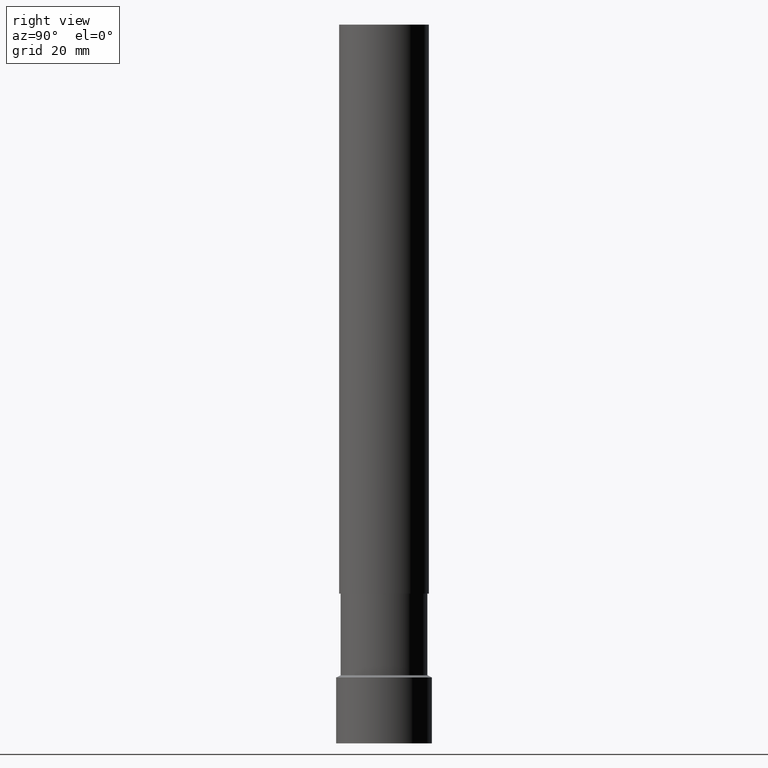
[diagram: clean part render]
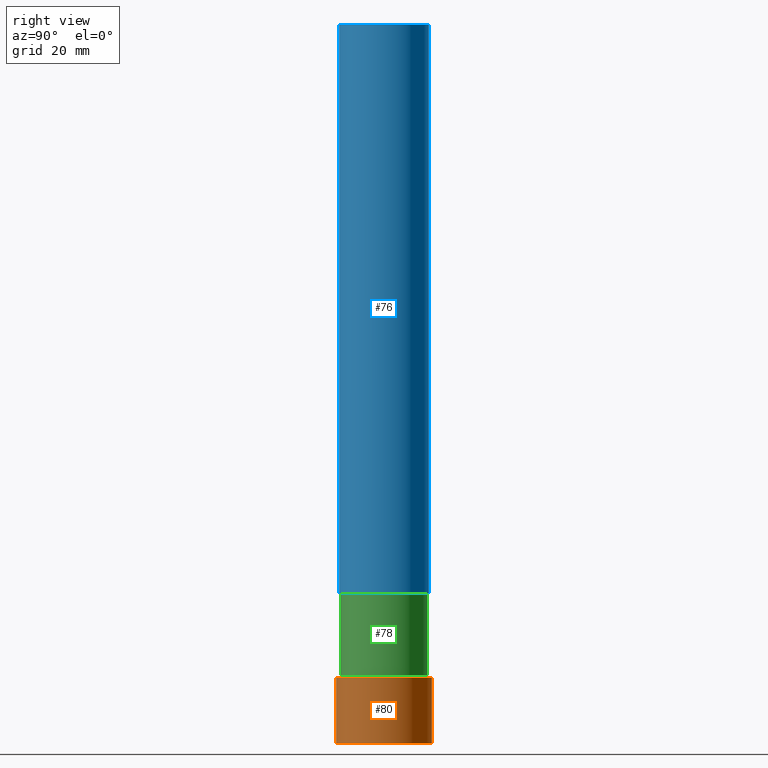
[diagram: same view with three faces highlighted in distinct colors, each labeled with its STEP entity id]
A machine part, right view with three faces highlighted in distinct colors.
Their STEP definitions:

[orange] entity #80 — the highlighted cylindrical surface (bore or boss wall) has radius 8 mm, axis along (-0, -0, 1).
#80=ADVANCED_FACE('',(#97,#98),#99,.T.);
#97=FACE_BOUND('',#116,.T.);
#98=FACE_BOUND('',#117,.T.);
#99=CYLINDRICAL_SURFACE('',#118,7.99999999999999);
#116=EDGE_LOOP('',(#145));
#117=EDGE_LOOP('',(#146));
#118=AXIS2_PLACEMENT_3D('',#147,#148,#149);
#145=ORIENTED_EDGE('',*,*,#159,.F.);
#146=ORIENTED_EDGE('',*,*,#158,.T.);
#147=CARTESIAN_POINT('',(-3.37062861257969E-016,-1.31483138278422E-015,5.50465426427677));
#148=DIRECTION('',(-6.12323399573677E-017,-2.38858122537686E-016,1.0));
#149=DIRECTION('',(-1.94529944915752E-032,1.0,2.38858122537686E-016));
#158=EDGE_CURVE('',#168,#168,#169,.T.);
#159=EDGE_CURVE('',#170,#170,#171,.T.);
#168=VERTEX_POINT('',#180);
#169=CIRCLE('',#181,8.0);
#170=VERTEX_POINT('',#182);
#171=CIRCLE('',#183,7.99999999999997);
#180=CARTESIAN_POINT('',(-6.74125722515938E-016,8.0,11.0093085285535));
#181=AXIS2_PLACEMENT_3D('',#196,#197,#198);
#182=CARTESIAN_POINT('',(0.0,7.99999999999997,0.0));
#183=AXIS2_PLACEMENT_3D('',#199,#200,#201);
#196=CARTESIAN_POINT('',(-6.74125722515938E-016,-2.62966276556843E-015,11.0093085285535));
#197=DIRECTION('',(6.12323399573677E-017,2.38858122537686E-016,-1.0));
#198=DIRECTION('',(-1.94529944915752E-032,1.0,2.38858122537686E-016));
#199=CARTESIAN_POINT('',(0.0,0.0,0.0));
#200=DIRECTION('',(6.12323399573676E-017,2.38858122537686E-016,-1.0));
#201=DIRECTION('',(-1.94529944915752E-032,1.0,2.38858122537686E-016));

[blue] entity #76 — the highlighted cylindrical surface (bore or boss wall) has radius 7.5 mm, axis along (-0, -0, 1).
#76=ADVANCED_FACE('',(#85,#86),#87,.T.);
#85=FACE_BOUND('',#104,.T.);
#86=FACE_BOUND('',#105,.T.);
#87=CYLINDRICAL_SURFACE('',#106,7.49999999999957);
#104=EDGE_LOOP('',(#125));
#105=EDGE_LOOP('',(#126));
#106=AXIS2_PLACEMENT_3D('',#127,#128,#129);
#125=ORIENTED_EDGE('',*,*,#155,.F.);
#126=ORIENTED_EDGE('',*,*,#154,.T.);
#127=CARTESIAN_POINT('',(-4.43934464690896E-015,-1.73172138839815E-014,72.4999999999968));
#128=DIRECTION('',(-6.12323399573677E-017,-2.38858122537686E-016,1.0));
#129=DIRECTION('',(-1.94529944915752E-032,1.0,2.38858122537686E-016));
#154=EDGE_CURVE('',#160,#160,#161,.T.);
#155=EDGE_CURVE('',#162,#162,#163,.T.);
#160=VERTEX_POINT('',#172);
#161=CIRCLE('',#173,7.49999999999911);
#162=VERTEX_POINT('',#174);
#163=CIRCLE('',#175,7.50000000000003);
#172=CARTESIAN_POINT('',(-7.3478807948841E-015,7.49999999999908,120.0));
#173=AXIS2_PLACEMENT_3D('',#184,#185,#186);
#174=CARTESIAN_POINT('',(-1.53080849893382E-015,7.50000000000002,24.9999999999939));
#175=AXIS2_PLACEMENT_3D('',#187,#188,#189);
#184=CARTESIAN_POINT('',(-7.3478807948841E-015,-2.86629747045223E-014,120.0));
#185=DIRECTION('',(6.12323399573677E-017,2.38858122537686E-016,-1.0));
#186=DIRECTION('',(-1.94529944915752E-032,1.0,2.38858122537686E-016));
#187=CARTESIAN_POINT('',(-1.53080849893382E-015,-5.9714530634407E-015,24.9999999999939));
#188=DIRECTION('',(6.12323399573676E-017,2.38858122537686E-016,-1.0));
#189=DIRECTION('',(-1.94529944915752E-032,1.0,2.38858122537686E-016));

[green] entity #78 — the highlighted cylindrical surface (bore or boss wall) has radius 7.25 mm, axis along (-0, -0, 1).
#78=ADVANCED_FACE('',(#91,#92),#93,.T.);
#91=FACE_BOUND('',#110,.T.);
#92=FACE_BOUND('',#111,.T.);
#93=CYLINDRICAL_SURFACE('',#112,7.25000000000084);
#110=EDGE_LOOP('',(#135));
#111=EDGE_LOOP('',(#136));
#112=AXIS2_PLACEMENT_3D('',#137,#138,#139);
#135=ORIENTED_EDGE('',*,*,#157,.F.);
#136=ORIENTED_EDGE('',*,*,#156,.T.);
#137=CARTESIAN_POINT('',(-1.11357185655772E-015,-4.34387585307654E-015,18.1860085264263));
#138=DIRECTION('',(-6.12323399573677E-017,-2.38858122537686E-016,1.0));
#139=DIRECTION('',(-1.94529944915752E-032,1.0,2.38858122537686E-016));
#156=EDGE_CURVE('',#164,#164,#165,.T.);
#157=EDGE_CURVE('',#166,#166,#167,.T.);
#164=VERTEX_POINT('',#176);
#165=CIRCLE('',#177,7.2500000000011);
#166=VERTEX_POINT('',#178);
#167=CIRCLE('',#179,7.25000000000059);
#176=CARTESIAN_POINT('',(-1.53080849893431E-015,7.25000000000109,25.0000000000019));
#177=AXIS2_PLACEMENT_3D('',#190,#191,#192);
#178=CARTESIAN_POINT('',(-6.96335214181137E-016,7.25000000000058,11.3720170528507));
#179=AXIS2_PLACEMENT_3D('',#193,#194,#195);
#190=CARTESIAN_POINT('',(-1.53080849893431E-015,-5.9714530634426E-015,25.0000000000019));
#191=DIRECTION('',(6.12323399573677E-017,2.38858122537686E-016,-1.0));
#192=DIRECTION('',(-1.94529944915752E-032,1.0,2.38858122537686E-016));
#193=CARTESIAN_POINT('',(-6.96335214181137E-016,-2.71629864271047E-015,11.3720170528507));
#194=DIRECTION('',(6.12323399573677E-017,2.38858122537686E-016,-1.0));
#195=DIRECTION('',(-1.94529944915752E-032,1.0,2.38858122537686E-016));